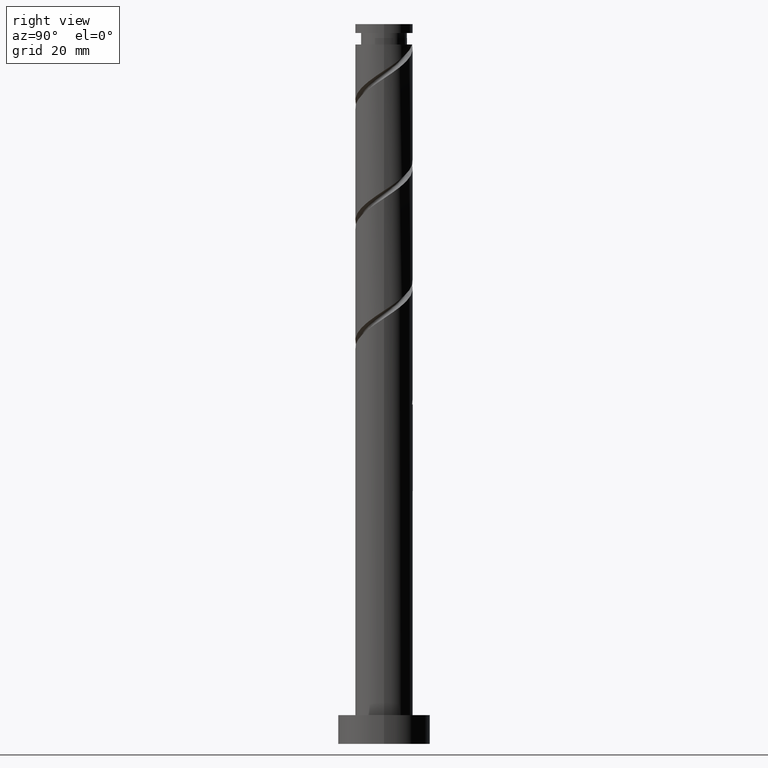
[diagram: clean part render]
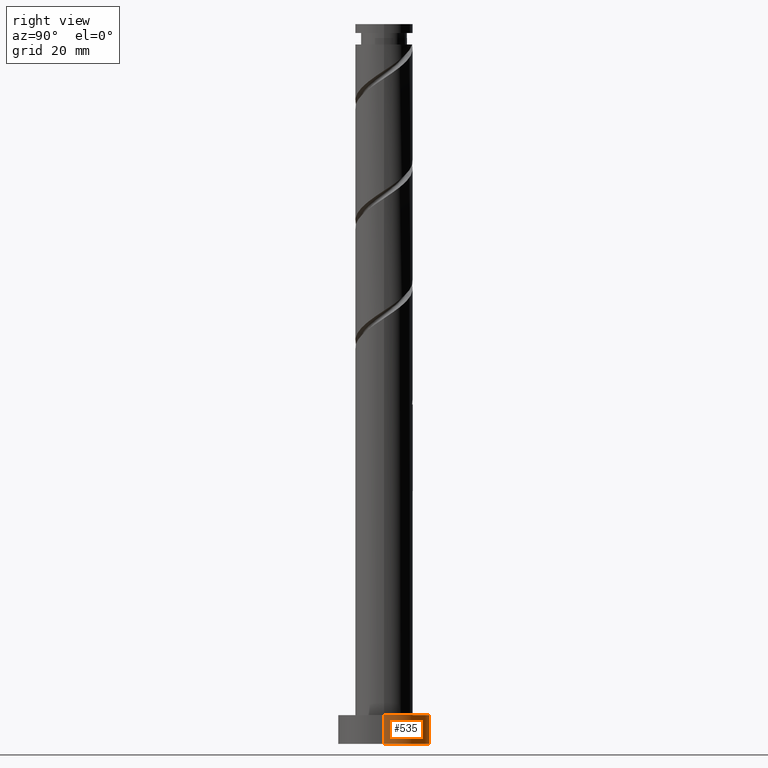
[diagram: same view with one face highlighted and labeled with its STEP entity id]
A machine part, right view. The second image highlights one B-rep face of the part: STEP entity #535.
In plain terms, the highlighted cylindrical surface (partial cylindrical patch) has radius 8 mm, axis along (-0, -0, -1).
Its self-contained STEP definition (entity closure, byte-faithful):
#30 = DIRECTION ( 'NONE',  ( 0.000000000000000000, 0.000000000000000000, 1.000000000000000000 ) ) ;
#65 = AXIS2_PLACEMENT_3D ( 'NONE', #1001, #30, #738 ) ;
#74 = FACE_OUTER_BOUND ( 'NONE', #1313, .T. ) ;
#75 = VERTEX_POINT ( 'NONE', #1004 ) ;
#108 = VECTOR ( 'NONE', #478, 1000.000000000000000 ) ;
#123 = ORIENTED_EDGE ( 'NONE', *, *, #1432, .T. ) ;
#143 = LINE ( 'NONE', #232, #234 ) ;
#162 = EDGE_CURVE ( 'NONE', #1235, #75, #1454, .T. ) ;
#173 = ORIENTED_EDGE ( 'NONE', *, *, #162, .T. ) ;
#187 = EDGE_CURVE ( 'NONE', #530, #391, #143, .T. ) ;
#213 = CARTESIAN_POINT ( 'NONE',  ( -8.000000000000000000, 0.000000000000000000, 0.000000000000000000 ) ) ;
#232 = CARTESIAN_POINT ( 'NONE',  ( -8.000000000000000000, 0.000000000000000000, 5.000000000000000000 ) ) ;
#234 = VECTOR ( 'NONE', #712, 1000.000000000000000 ) ;
#266 = CIRCLE ( 'NONE', #1371, 8.000000000000000000 ) ;
#349 = CARTESIAN_POINT ( 'NONE',  ( 8.000000000000000000, 9.797174393178825657E-16, 5.000000000000000000 ) ) ;
#363 = DIRECTION ( 'NONE',  ( 1.000000000000000000, 0.000000000000000000, 0.000000000000000000 ) ) ;
#391 = VERTEX_POINT ( 'NONE', #213 ) ;
#439 = DIRECTION ( 'NONE',  ( -1.000000000000000000, 0.000000000000000000, 0.000000000000000000 ) ) ;
#478 = DIRECTION ( 'NONE',  ( -0.000000000000000000, -0.000000000000000000, -1.000000000000000000 ) ) ;
#530 = VERTEX_POINT ( 'NONE', #1011 ) ;
#535 = ADVANCED_FACE ( 'NONE', ( #74 ), #543, .T. ) ;
#543 = CYLINDRICAL_SURFACE ( 'NONE', #640, 8.000000000000000000 ) ;
#640 = AXIS2_PLACEMENT_3D ( 'NONE', #1033, #1124, #439 ) ;
#685 = CARTESIAN_POINT ( 'NONE',  ( 8.000000000000000000, 9.797174393178825657E-16, 5.000000000000000000 ) ) ;
#712 = DIRECTION ( 'NONE',  ( -0.000000000000000000, -0.000000000000000000, -1.000000000000000000 ) ) ;
#716 = CARTESIAN_POINT ( 'NONE',  ( 0.000000000000000000, 0.000000000000000000, 5.000000000000000000 ) ) ;
#738 = DIRECTION ( 'NONE',  ( 1.000000000000000000, 0.000000000000000000, 0.000000000000000000 ) ) ;
#820 = ORIENTED_EDGE ( 'NONE', *, *, #187, .F. ) ;
#972 = CIRCLE ( 'NONE', #65, 8.000000000000000000 ) ;
#1001 = CARTESIAN_POINT ( 'NONE',  ( 0.000000000000000000, 0.000000000000000000, 0.000000000000000000 ) ) ;
#1004 = CARTESIAN_POINT ( 'NONE',  ( 8.000000000000000000, 9.797174393178825657E-16, 0.000000000000000000 ) ) ;
#1011 = CARTESIAN_POINT ( 'NONE',  ( -8.000000000000000000, 0.000000000000000000, 5.000000000000000000 ) ) ;
#1033 = CARTESIAN_POINT ( 'NONE',  ( 0.000000000000000000, 0.000000000000000000, 5.000000000000000000 ) ) ;
#1051 = EDGE_CURVE ( 'NONE', #1235, #530, #266, .T. ) ;
#1124 = DIRECTION ( 'NONE',  ( -0.000000000000000000, -0.000000000000000000, -1.000000000000000000 ) ) ;
#1235 = VERTEX_POINT ( 'NONE', #685 ) ;
#1313 = EDGE_LOOP ( 'NONE', ( #1543, #173, #123, #820 ) ) ;
#1371 = AXIS2_PLACEMENT_3D ( 'NONE', #716, #1434, #363 ) ;
#1432 = EDGE_CURVE ( 'NONE', #75, #391, #972, .T. ) ;
#1434 = DIRECTION ( 'NONE',  ( 0.000000000000000000, 0.000000000000000000, 1.000000000000000000 ) ) ;
#1454 = LINE ( 'NONE', #349, #108 ) ;
#1543 = ORIENTED_EDGE ( 'NONE', *, *, #1051, .F. ) ;